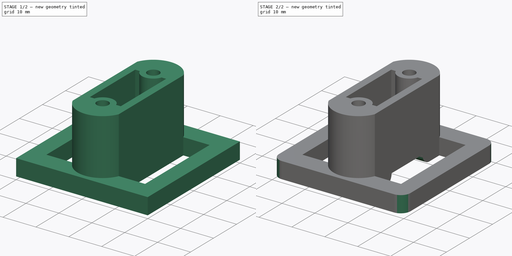
[diagram: build sequence overview — one tinted view per stage of 2, left to right]
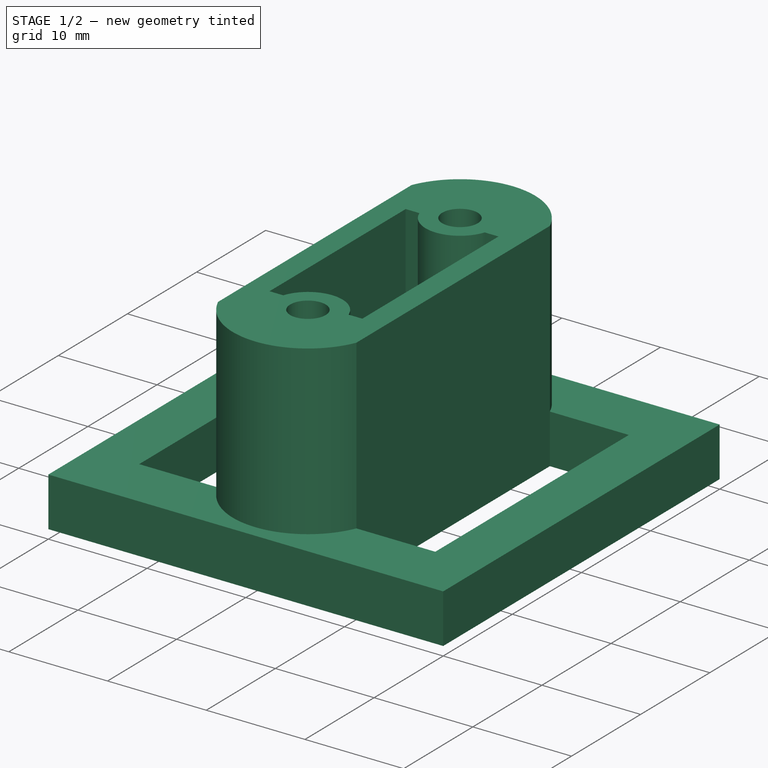
[diagram: stage 1 of 2 — iso view after this stage's code; geometry added in this stage tinted green]
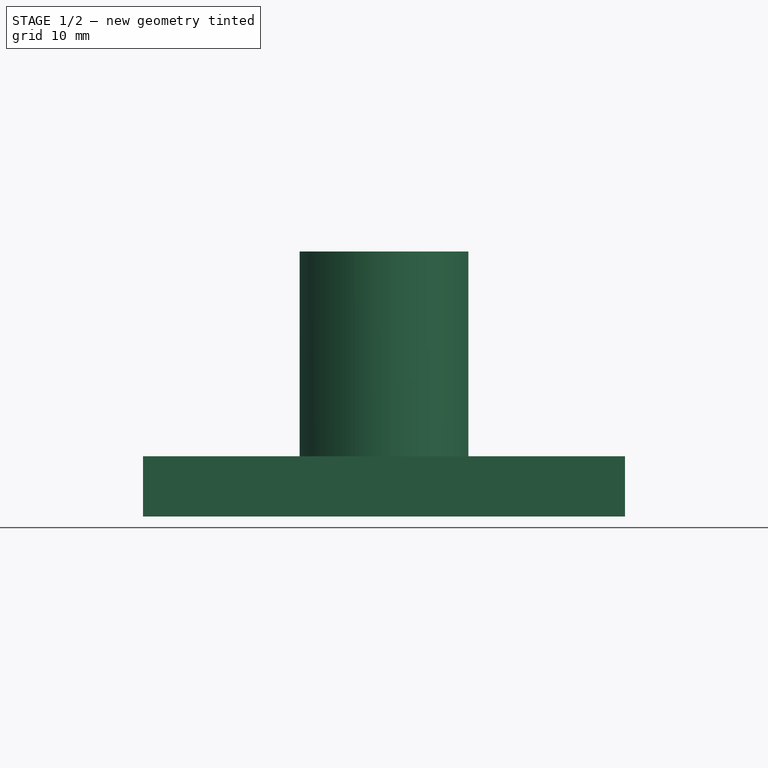
[diagram: stage 1 of 2 — front view after this stage's code; geometry added in this stage tinted green]
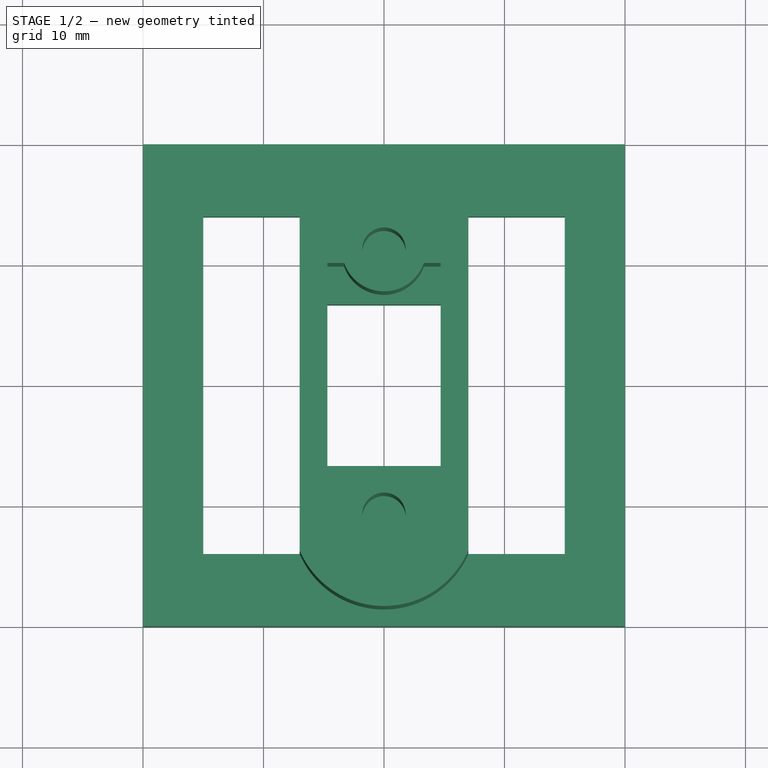
[diagram: stage 1 of 2 — top view after this stage's code; geometry added in this stage tinted green]
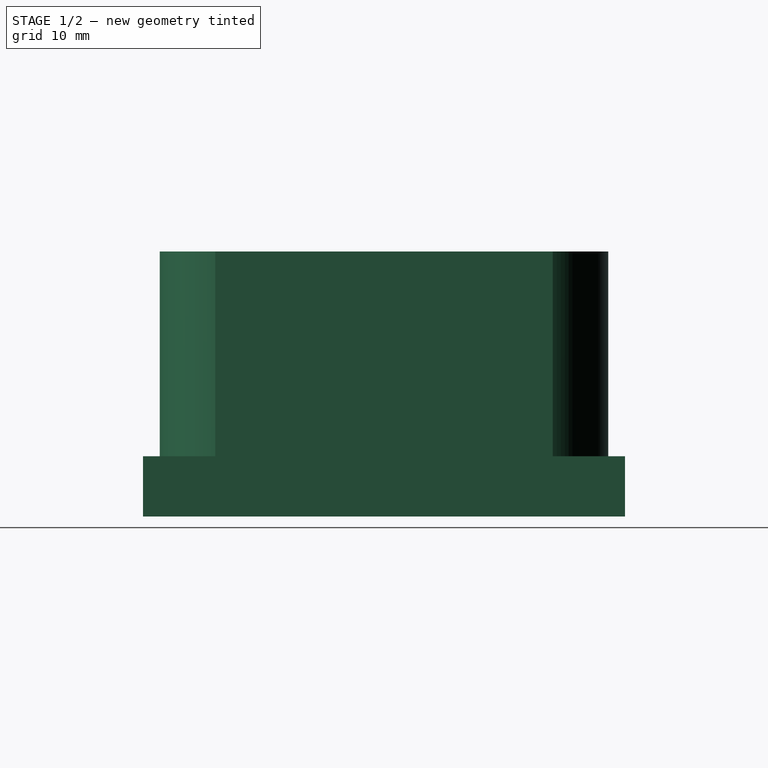
[diagram: stage 1 of 2 — right view after this stage's code; geometry added in this stage tinted green]
FCSTD DOCUMENT  (FreeCAD 0.20R29177 (Git))
Label: Caravan Door Lock
License: All rights reserved
LicenseURL: http://en.wikipedia.org/wiki/All_rights_reserved
objects: Sketcher::SketchObject×3, PartDesign::Pad×2, PartDesign::Pocket×1, PartDesign::Fillet×1, PartDesign::Body×1, App::Part×1
note: 12 computed .brp shape members not serialized (recipe doc carries the construction recipe); baked Part::Feature solids carry a one-line shape summary decoded from their .brp

FEATURE [Sketcher::SketchObject] Sketch
  FullyConstrained = true
  MapMode = 5
  Support = -> [XY_Plane001]
  sketch-geometry (18):
    g0: LineSegment StartX=20 StartY=-20 StartZ=0 EndX=20 EndY=20 EndZ=0
    g1: LineSegment StartX=20 StartY=20 StartZ=0 EndX=-20 EndY=20 EndZ=0
    g2: LineSegment StartX=-20 StartY=20 StartZ=0 EndX=-20 EndY=-20 EndZ=0
    g3: LineSegment StartX=-20 StartY=-20 StartZ=0 EndX=20 EndY=-20 EndZ=0
    g4: Circle CenterX=0 CenterY=-2e-16 CenterZ=0 NormalX=0 NormalY=0 NormalZ=1 AngleXU=0 Radius=28.2843
    g5: LineSegment StartX=-15 StartY=14 StartZ=0 EndX=-7 EndY=14 EndZ=0
    g6: LineSegment StartX=-7 StartY=14 StartZ=0 EndX=-7 EndY=-14 EndZ=0
    g7: LineSegment StartX=-7 StartY=-14 StartZ=0 EndX=-15 EndY=-14 EndZ=0
    g8: LineSegment StartX=-15 StartY=-14 StartZ=0 EndX=-15 EndY=14 EndZ=0
    g9: LineSegment StartX=7 StartY=14 StartZ=0 EndX=15 EndY=14 EndZ=0
    g10: LineSegment StartX=15 StartY=14 StartZ=0 EndX=15 EndY=-14 EndZ=0
    g11: LineSegment StartX=15 StartY=-14 StartZ=0 EndX=7 EndY=-14 EndZ=0
    g12: LineSegment StartX=7 StartY=-14 StartZ=0 EndX=7 EndY=14 EndZ=0
    g13: LineSegment StartX=-4.7 StartY=6.7 StartZ=0 EndX=-4.7 EndY=-6.7 EndZ=0
    g14: LineSegment StartX=-4.7 StartY=-6.7 StartZ=0 EndX=4.7 EndY=-6.7 EndZ=0
    g15: LineSegment StartX=4.7 StartY=-6.7 StartZ=0 EndX=4.7 EndY=6.7 EndZ=0
    g16: LineSegment StartX=4.7 StartY=6.7 StartZ=0 EndX=-4.7 EndY=6.7 EndZ=0
    g17: GeomPoint X=0 Y=-2e-16 Z=0
  constraints (50):
    c: Coincident(g0,g1)
    c: Coincident(g1,g2)
    c: Coincident(g2,g3)
    c: Coincident(g3,g0)
    c: Equal(g0,g1)
    c: Equal(g0,g2)
    c: Equal(g0,g3)
    c: PointOnObject(g0,g4)
    c: PointOnObject(g1,g4)
    c: PointOnObject(g2,g4)
    c: PointOnObject(g3,g4)
    c: Coincident(g4,g-1)
    c: Horizontal(g1)
    c: DistanceX(g1,g1) = 40
    c: Coincident(g5,g6)
    c: Coincident(g6,g7)
    c: Coincident(g7,g8)
    c: Coincident(g8,g5)
    c: Horizontal(g5)
    c: Horizontal(g7)
    c: Vertical(g6)
    c: Vertical(g8)
    c: DistanceX(g5,g5) = 8
    c: DistanceY(g8,g8) = 28
    c: DistanceX(g2,g7) = 5
    c: DistanceY(g2,g7) = 6
    c: Coincident(g9,g10)
    c: Coincident(g10,g11)
    c: Coincident(g11,g12)
    c: Coincident(g12,g9)
    c: Horizontal(g9)
    c: Horizontal(g11)
    c: Vertical(g10)
    c: Vertical(g12)
    c: Equal(g5,g9)
    c: Equal(g6,g12)
    c: Horizontal(g5,g9)
    c: DistanceX(g10,g0) = 5
    c: Coincident(g13,g14)
    c: Coincident(g14,g15)
    c: Coincident(g15,g16)
    c: Coincident(g16,g13)
    c: Horizontal(g14)
    c: Horizontal(g16)
    c: Vertical(g13)
    c: Vertical(g15)
    c: Symmetric(g14,g13,g17)
    c: Coincident(g17,g4)
    c: DistanceX(g16,g16) = 9.4
    c: DistanceY(g15,g15) = 13.4
FEATURE [PartDesign::Pad] Pad
  Direction = (0,0,1)
  Length = 5
  Length2 = 10
  Profile = -> Sketch
  ReferenceAxis = -> Sketch [N_Axis]
  Type = 0
FEATURE [Sketcher::SketchObject] Sketch001
  ExternalGeometry = -> [Pad]
  FullyConstrained = true
  MapMode = 5
  Placement = pos=(0,0,5) rot=(0,0,1;0rad)
  Support = -> [Pad]
  expr: Constraints[14] = 19.7 / 2
  expr: Constraints[36] = 19.7 / 2
  sketch-geometry (16):
    g0: LineSegment StartX=7 StartY=-14 StartZ=0 EndX=7 EndY=14 EndZ=0
    g1: LineSegment StartX=-7 StartY=14 StartZ=0 EndX=-7 EndY=-14 EndZ=0
    g2: Circle CenterX=0 CenterY=11 CenterZ=0 NormalX=0 NormalY=0 NormalZ=1 AngleXU=0 Radius=1.8
    g3: Circle CenterX=0 CenterY=-11 CenterZ=0 NormalX=0 NormalY=0 NormalZ=1 AngleXU=0 Radius=1.8
    g4: ArcOfCircle CenterX=0 CenterY=11 CenterZ=0 NormalX=0 NormalY=0 NormalZ=1 AngleXU=0 Radius=3.5 StartAngle=3.47638 EndAngle=5.94839
    g5: LineSegment StartX=-3.30568 StartY=9.85 StartZ=0 EndX=-4.7 EndY=9.85 EndZ=0
    g6: LineSegment StartX=-4.7 StartY=9.85 StartZ=0 EndX=-4.7 EndY=0 EndZ=0
    g7: LineSegment StartX=3.30568 StartY=9.85 StartZ=0 EndX=4.7 EndY=9.85 EndZ=0
    g8: LineSegment StartX=4.7 StartY=9.85 StartZ=0 EndX=4.7 EndY=0 EndZ=0
    g9: LineSegment StartX=-4.7 StartY=-9.85 StartZ=0 EndX=-4.7 EndY=0 EndZ=0
    g10: LineSegment StartX=-3.30568 StartY=-9.85 StartZ=0 EndX=-4.7 EndY=-9.85 EndZ=0
    g11: ArcOfCircle CenterX=0 CenterY=-11 CenterZ=0 NormalX=0 NormalY=0 NormalZ=1 AngleXU=0 Radius=3.5 StartAngle=0.334791 EndAngle=2.8068
    g12: LineSegment StartX=3.30568 StartY=-9.85 StartZ=0 EndX=4.7 EndY=-9.85 EndZ=0
    g13: LineSegment StartX=4.7 StartY=-9.85 StartZ=0 EndX=4.7 EndY=0 EndZ=0
    g14: ArcOfCircle CenterX=0 CenterY=11 CenterZ=0 NormalX=0 NormalY=0 NormalZ=1 AngleXU=0 Radius=7.61577 StartAngle=0.404892 EndAngle=2.7367
    g15: ArcOfCircle CenterX=0 CenterY=-11 CenterZ=0 NormalX=0 NormalY=0 NormalZ=1 AngleXU=0 Radius=7.61577 StartAngle=3.54648 EndAngle=5.87829
  constraints (46):
    c: Vertical(g0)
    c: Vertical(g1)
    c: Coincident(g0,g-4)
    c: PointOnObject(g2,g-2)
    c: PointOnObject(g3,g-2)
    c: Diameter(g2) = 3.6
    c: DistanceY(g-1,g2) = 11
    c: DistanceY(g3,g-1) = 11
    c: Coincident(g4,g2)
    c: Diameter(g4) = 7
    c: Horizontal(g4,g4)
    c: Coincident(g5,g4)
    c: Horizontal(g5)
    c: Vertical(g5,g-5)
    c: DistanceY(g-1,g5) = 9.85
    c: Coincident(g6,g5)
    c: PointOnObject(g6,g-5)
    c: Horizontal(g7)
    c: Coincident(g8,g7)
    c: Vertical(g8)
    c: Diameter(g11) = 7
    c: Coincident(g10,g11)
    c: Horizontal(g10)
    c: Coincident(g9,g10)
    c: Vertical(g9)
    c: Horizontal(g12)
    c: Coincident(g13,g12)
    c: Vertical(g13)
    c: Coincident(g7,g4)
    c: Vertical(g7,g-6)
    c: Coincident(g13,g8)
    c: Coincident(g12,g11)
    c: Coincident(g11,g3)
    c: Coincident(g9,g6)
    c: Horizontal(g6,g-1)
    c: Horizontal(g8,g-1)
    c: DistanceY(g9,g6) = 9.85
    c: Horizontal(g9,g12)
    c: Diameter(g3) = 3.6
    c: Coincident(g14,g2)
    c: Coincident(g14,g1)
    c: Coincident(g14,g0)
    c: Coincident(g15,g3)
    c: Coincident(g15,g1)
    c: Coincident(g15,g0)
    c: Coincident(g1,g-3)
FEATURE [PartDesign::Pad] Pad001
  BaseFeature = -> Pad
  Direction = (0,0,1)
  Length = 17
  Length2 = 10
  Profile = -> Sketch001
  ReferenceAxis = -> Sketch001 [N_Axis]
  Type = 0
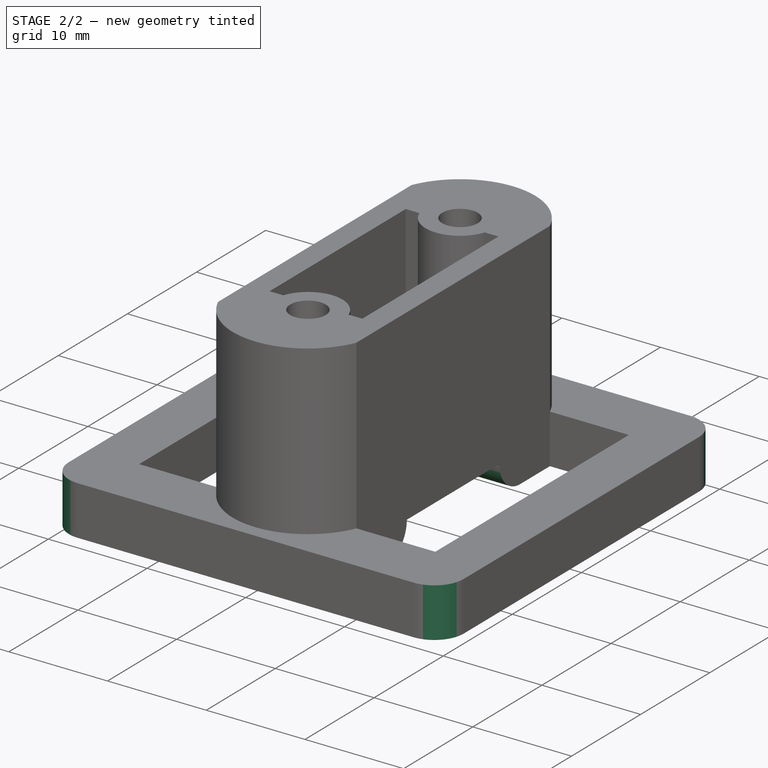
[diagram: stage 2 of 2 — iso view after this stage's code; geometry added in this stage tinted green]
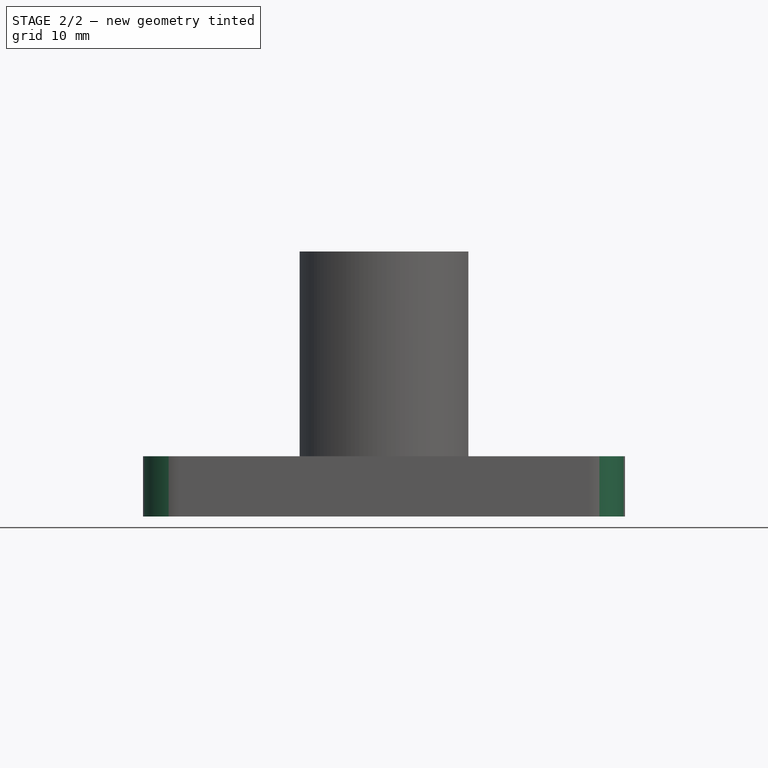
[diagram: stage 2 of 2 — front view after this stage's code; geometry added in this stage tinted green]
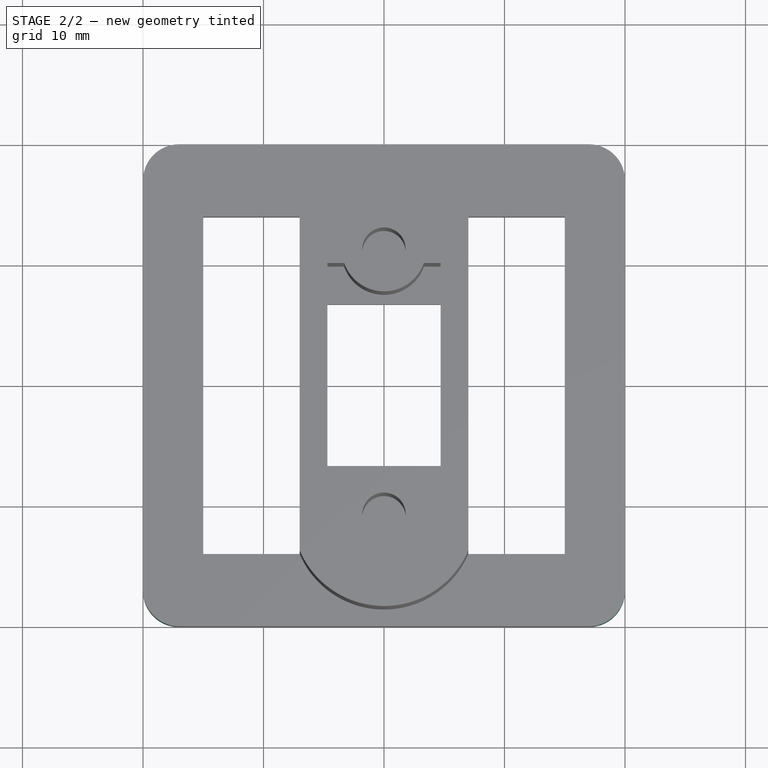
[diagram: stage 2 of 2 — top view after this stage's code; geometry added in this stage tinted green]
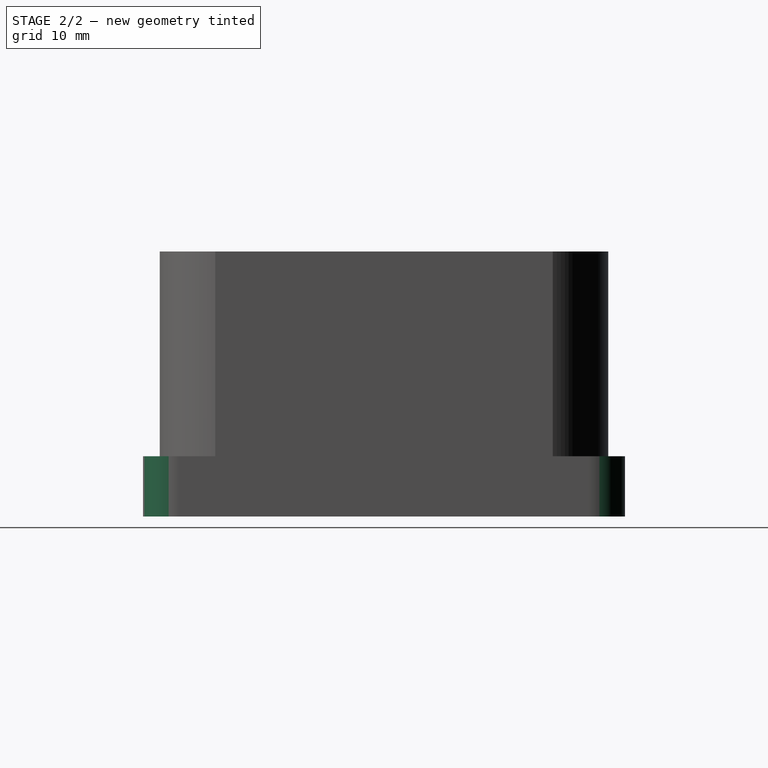
[diagram: stage 2 of 2 — right view after this stage's code; geometry added in this stage tinted green]
FEATURE [Sketcher::SketchObject] Sketch002
  FullyConstrained = false
  MapMode = 5
  Placement = pos=(-4.7,0,0) rot=(0.57735,0.57735,0.57735;2.0944rad)
  sketch-geometry (4):
    g0: ArcOfCircle CenterX=-9.7 CenterY=3 CenterZ=0 NormalX=0 NormalY=0 NormalZ=1 AngleXU=0 Radius=3 StartAngle=4.71239 EndAngle=6.28319
    g1: ArcOfCircle CenterX=9.7 CenterY=3 CenterZ=0 NormalX=0 NormalY=0 NormalZ=1 AngleXU=0 Radius=3 StartAngle=3.14159 EndAngle=4.71239
    g2: LineSegment StartX=-9.7 StartY=-4e-16 StartZ=0 EndX=9.7 EndY=-4e-16 EndZ=0
    g3: LineSegment StartX=6.7 StartY=3 StartZ=0 EndX=-6.7 EndY=3 EndZ=0
  constraints (4):
    c: Coincident(g2,g0)
    c: Coincident(g2,g1)
    c: Coincident(g3,g1)
    c: Coincident(g3,g0)
FEATURE [PartDesign::Pocket] Pocket
  BaseFeature = -> Pad001
  Direction = (-1,0,0)
  Length = 5
  Length2 = 15
  Profile = -> Sketch002
  ReferenceAxis = -> Sketch002 [N_Axis]
  Type = 4
FEATURE [PartDesign::Fillet] Fillet
  Base = -> Pocket [Edge2,Edge8,Edge5,Edge1]
  BaseFeature = -> Pocket
  Radius = 3
  SupportTransform = false
  UseAllEdges = false
FEATURE [PartDesign::Body] Body
  Group = -> [Sketch,Pad,Sketch001,Pad001,Sketch002,Pocket,Fillet]
  Origin = -> Origin001
  Tip = -> Fillet
FEATURE [App::Part] Part
  Group = -> [Body]
  Origin = -> Origin
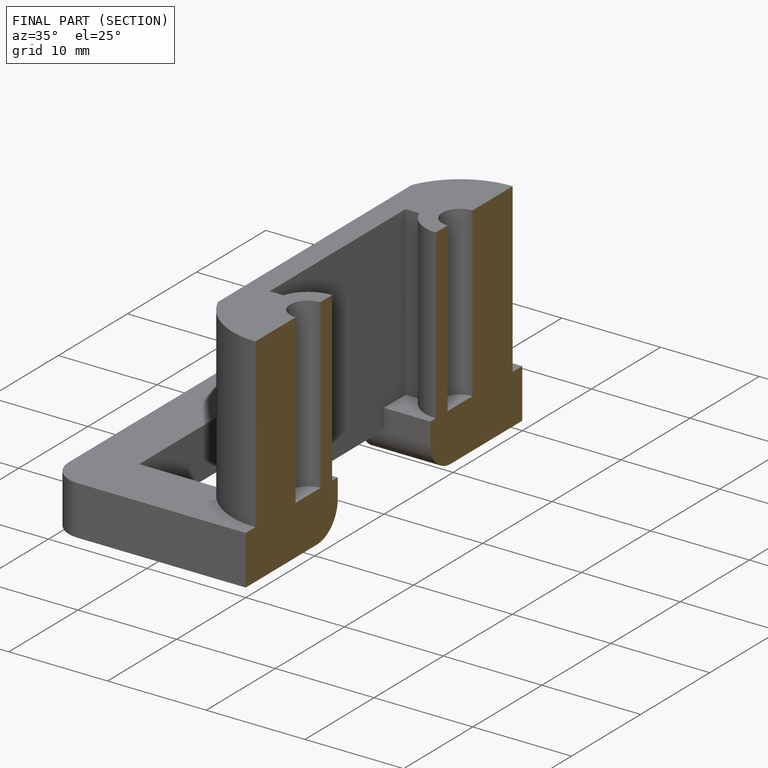
[diagram: finished part — half-section view (interior)]
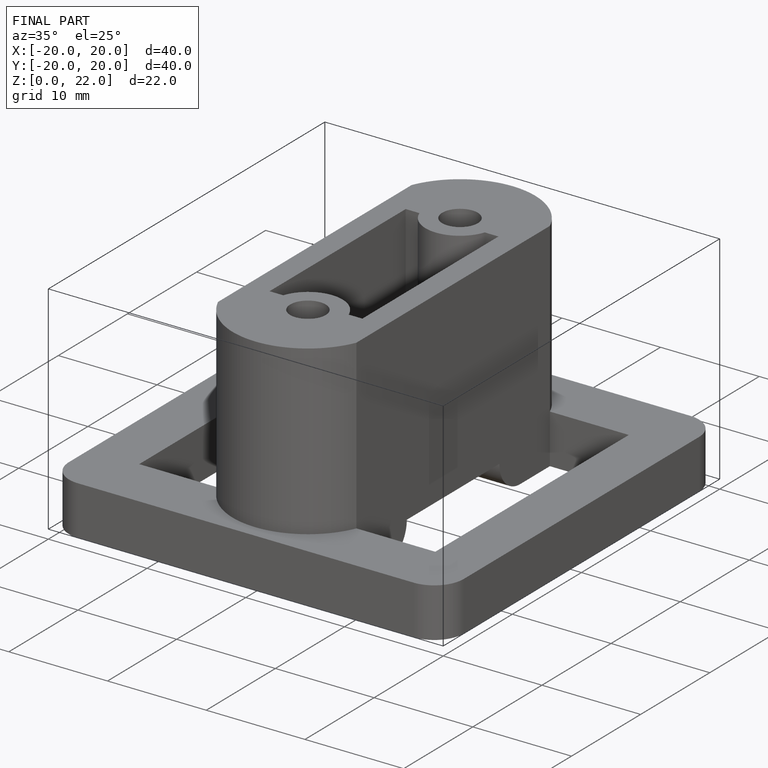
[diagram: finished part — iso view with bounding-box wireframe]
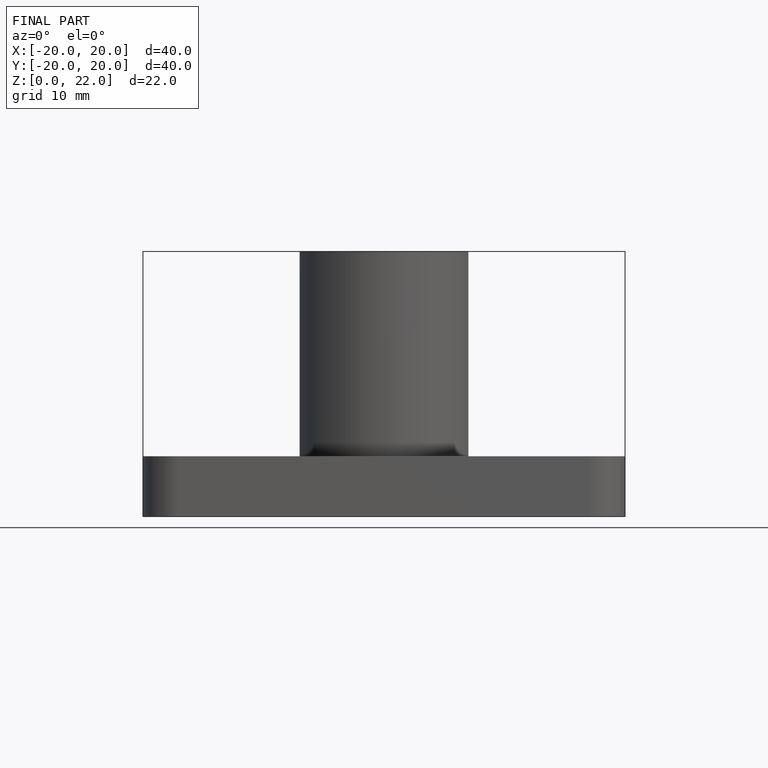
[diagram: finished part — front view with bounding-box wireframe]
